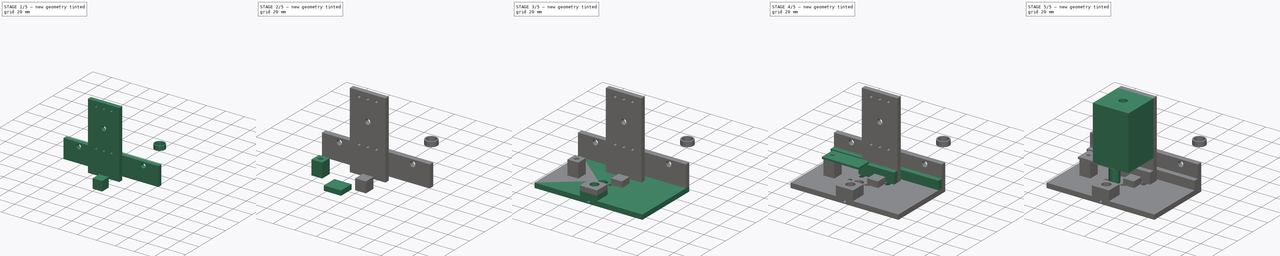
[diagram: build sequence overview — one tinted view per stage of 5, left to right]
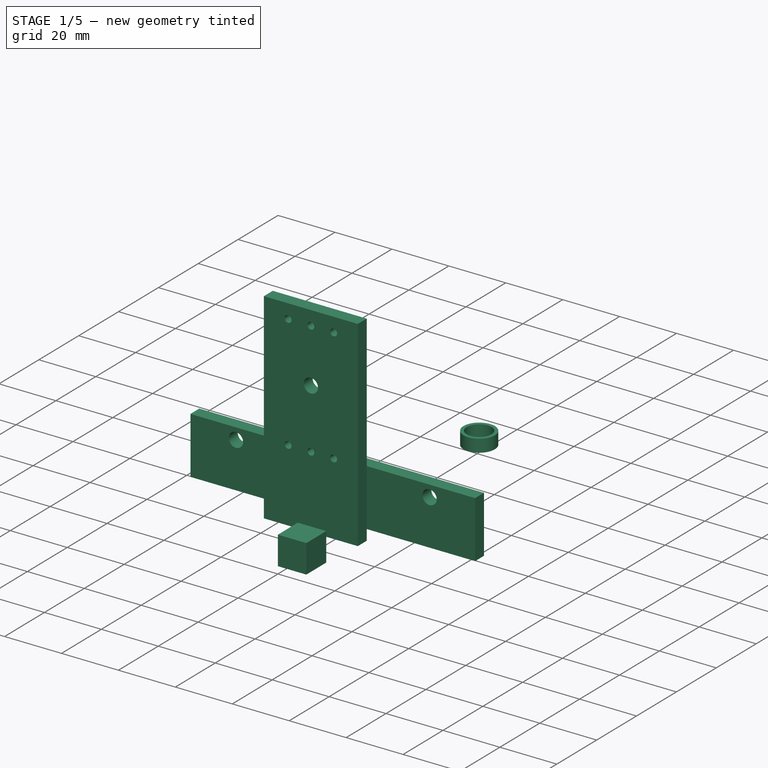
[diagram: stage 1 of 5 — iso view after this stage's code; geometry added in this stage tinted green]
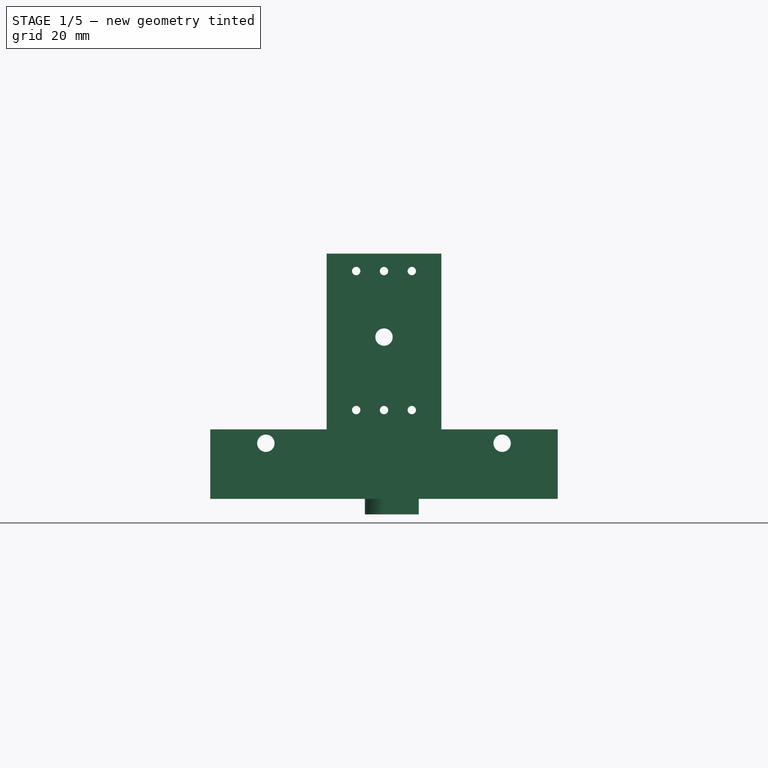
[diagram: stage 1 of 5 — front view after this stage's code; geometry added in this stage tinted green]
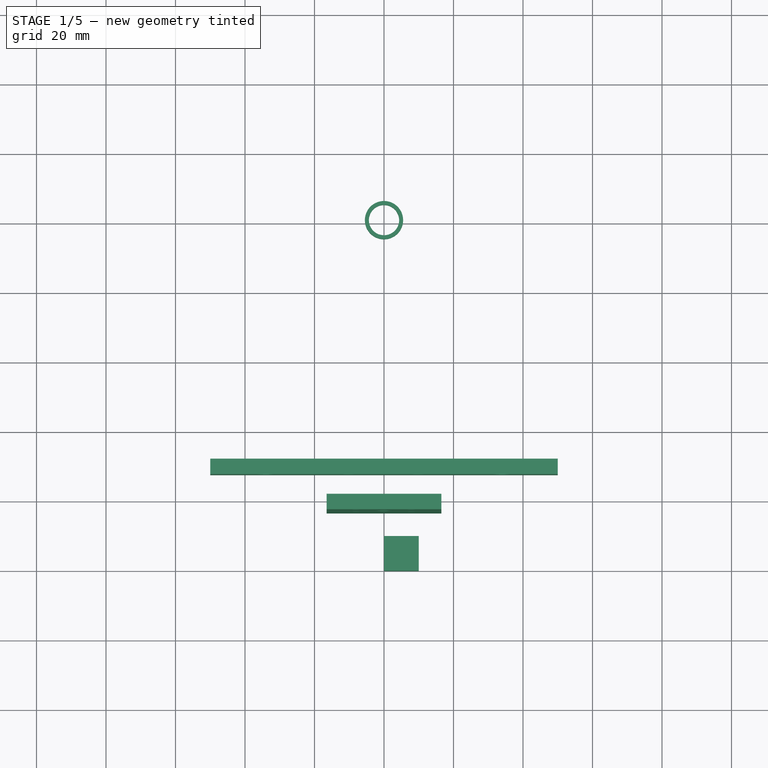
[diagram: stage 1 of 5 — top view after this stage's code; geometry added in this stage tinted green]
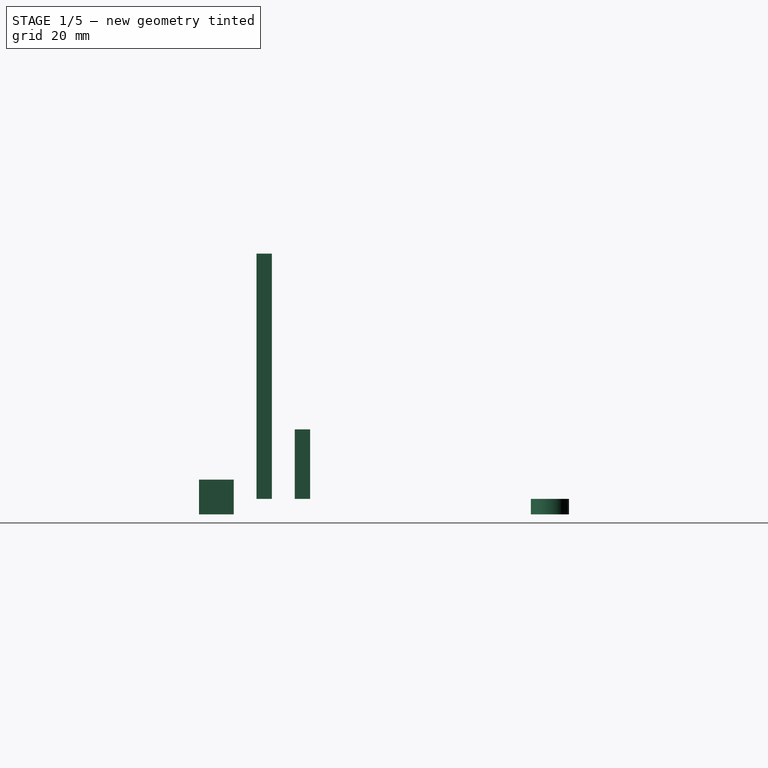
[diagram: stage 1 of 5 — right view after this stage's code; geometry added in this stage tinted green]
FCSTD DOCUMENT  (FreeCAD 0.14R3700 (Git))
Label: laser solderer v9
License: CC-BY 3.0
LicenseURL: http://creativecommons.org/licenses/by/3.0/
objects: Sketcher::SketchObject×23, PartDesign::Pocket×18, Part::Box×12, Part::Feature×9, App::DocumentObjectGroup×5, PartDesign::Pad×4, App::MeasureDistance×4, Part::Cylinder×2
note: 90 computed .brp shape members not serialized (recipe doc carries the construction recipe); baked Part::Feature solids carry a one-line shape summary decoded from their .brp

FEATURE [Part::Box] Box004  label="Laser Support"
  Height = 70.55
  Length = 33
  Placement = pos=(-16.5,16.55,4.45) rot=(0,0,1;0rad)
  Width = 4.45
FEATURE [Part::Box] Box006  label="Back Wall"
  Height = 20
  Length = 100
  Placement = pos=(-50,27.55,4.45) rot=(0,0,1;0rad)
  Width = 4.45
FEATURE [App::DocumentObjectGroup] Group002  label="Melexis"
  Group = -> [Box001,Box002,Cylinder,Pad002,Pad003,Pocket003,Box003,Box005,Pocket004,Pocket013,Pocket014,Pocket015]
FEATURE [Part::Box] Box011  label="LaserSmall"
  Height = 10
  Length = 10
  Width = 10
FEATURE [Sketcher::SketchObject] Sketch021
  Placement = pos=(-16.5,16.55,4.45) rot=(1,0,0;1.5708rad)
  Support = -> Box004 [Face3]
  sketch-geometry (7):
    g0: Circle CenterX=8.5 CenterY=65.55 CenterZ=0 NormalX=0 NormalY=0 NormalZ=1 Radius=1.2
    g1: Circle CenterX=24.5 CenterY=65.55 CenterZ=0 NormalX=0 NormalY=0 NormalZ=1 Radius=1.2
    g2: Circle CenterX=16.5 CenterY=65.55 CenterZ=0 NormalX=0 NormalY=0 NormalZ=1 Radius=1.2
    g3: Circle CenterX=8.5 CenterY=25.55 CenterZ=0 NormalX=0 NormalY=0 NormalZ=1 Radius=1.2
    g4: Circle CenterX=24.5 CenterY=25.55 CenterZ=0 NormalX=0 NormalY=0 NormalZ=1 Radius=1.2
    g5: Circle CenterX=16.5 CenterY=25.55 CenterZ=0 NormalX=0 NormalY=0 NormalZ=1 Radius=1.2
    g6: Circle CenterX=16.5 CenterY=46.55 CenterZ=0 NormalX=0 NormalY=0 NormalZ=1 Radius=2.5
  constraints (21):
    c: Radius(g0) = 1.2
    c: Equal(g1,g0)
    c: DistanceX(g1,g0) = -16
    c: Equal(g2,g0)
    c: DistanceY(g0,g2) = 0
    c: DistanceY(g2,g1) = 0
    c: DistanceX(g2,g1) = 8
    c: DistanceX(g0) = 8.5
    c: DistanceY(g0) = 65.55
    c: Equal(g1,g4)
    c: Equal(g4,g5)
    c: Equal(g5,g3)
    c: DistanceY(g3,g0) = 40
    c: DistanceX(g0,g3) = 0
    c: DistanceY(g5,g3) = 0
    c: DistanceY(g5,g4) = 0
    c: DistanceX(g5,g2) = 0
    c: DistanceX(g4,g1) = 0
    c: Radius(g6) = 2.5
    c: DistanceY(g6,g2) = 19
    c: DistanceX(g2,g6) = 0
FEATURE [PartDesign::Pocket] Pocket016
  Length = 5
  Placement = pos=(-16.5,16.55,4.45) rot=(0,0,1;0rad)
  Sketch = -> Sketch021
  Type = 0
FEATURE [App::DocumentObjectGroup] Group001  label="Laser"
  Group = -> [Box,Pad001,Pocket001,Box004,Box007,Box011,Pocket016]
FEATURE [Sketcher::SketchObject] Sketch022
  Placement = pos=(-50,27.55,4.45) rot=(1,0,0;1.5708rad)
  Support = -> Box006 [Face3]
  sketch-geometry (4):
    g0: Circle CenterX=16 CenterY=16 CenterZ=0 NormalX=0 NormalY=0 NormalZ=1 Radius=2.5
    g1: Circle CenterX=84 CenterY=16 CenterZ=0 NormalX=0 NormalY=0 NormalZ=1 Radius=2.5
    g2: Circle CenterX=40 CenterY=16 CenterZ=0 NormalX=0 NormalY=0 NormalZ=1 Radius=1.75
    g3: Circle CenterX=60 CenterY=16 CenterZ=0 NormalX=0 NormalY=0 NormalZ=1 Radius=1.75
  constraints (12):
    c: Radius(g1) = 2.5
    c: Equal(g0,g1)
    c: DistanceX(g0,g1) = 68
    c: DistanceY(g1,g0) = 0
    c: DistanceX(g0) = 16
    c: DistanceY(g0) = 16
    c: Radius(g3) = 1.75
    c: Equal(g3,g2)
    c: DistanceX(g3,g2) = -20
    c: DistanceY(g3,g2) = 0
    c: DistanceY(g1,g3) = 0
    c: DistanceX(g2) = 40
FEATURE [PartDesign::Pocket] Pocket017  label="BackHolder"
  Length = 5
  Placement = pos=(-50,27.55,4.45) rot=(0,0,1;0rad)
  Sketch = -> Sketch022
  Type = 0
FEATURE [Part::Feature] Pocket018  label="BackHolder001"
  Placement = pos=(-50,43.55,4.45) rot=(-1,0,0;1.5708rad)
  shape: bbox 100 x 20 x 4.45 mm, 10 faces (baked)
FEATURE [Part::Feature] Box012  label="Back Wall002"
  Placement = pos=(-50,34.1,4.45) rot=(-1,0,0;1.5708rad)
  shape: bbox 100 x 8 x 4.45 mm, 6 faces (baked)
FEATURE [Part::Feature] Box013  label="Laser Support002"
  Placement = pos=(-13.5,66.1,4.45) rot=(-1,0,0;1.5708rad)
  shape: bbox 33 x 10 x 4.45 mm, 6 faces (baked)
FEATURE [Part::Feature] Pocket020  label="USBCamShim"
  Placement = pos=(-13,78,0) rot=(0,0,1;0rad)
  shape: bbox 16 x 14 x 4.45 mm, 7 faces (baked)
FEATURE [Part::Feature] Pocket021  label="CircuitBoardShimMiddle001"
  Placement = pos=(23,66,0) rot=(0,0,1;0rad)
  shape: bbox 10 x 10 x 4.45 mm, 7 faces (baked)
FEATURE [Part::Feature] Pocket022  label="USBCamShim001"
  Placement = pos=(6,78,0) rot=(0,0,1;0rad)
  shape: bbox 16 x 14 x 4.45 mm, 7 faces (baked)
FEATURE [Part::Feature] Pocket023  label="CircuitBoardShimMiddle002"
  Placement = pos=(37,66,0) rot=(0,0,1;0rad)
  shape: bbox 10 x 10 x 4.45 mm, 7 faces (baked)
FEATURE [Part::Feature] Pocket024  label="CircuitBoardShimMiddle003"
  Placement = pos=(27,79,0) rot=(0,0,1;0rad)
  shape: bbox 10 x 10 x 4.45 mm, 7 faces (baked)
FEATURE [Part::Feature] Pocket025  label="Pocket017"
  Placement = pos=(-49.5,137.55,0) rot=(1,0,0;1.5708rad)
  shape: bbox 33 x 70.55 x 4.45 mm, 13 faces (baked)
FEATURE [App::DocumentObjectGroup] Group004  label="Milling Copies"
  Group = -> [Pocket018,Box012,Box013,Pocket020,Pocket021,Pocket022,Pocket023,Pocket024,Pocket025]
FEATURE [App::MeasureDistance] Distance  label="Distance: 4.972"
  Distance = 4.97179
  P1 = (-3.9,0,16.8269)
  P2 = (-3,4.38022,19)
FEATURE [App::MeasureDistance] Distance001  label="Distance: 2.925"
  Distance = 2.92479
  P1 = (-3.90413,-0.0841208,16.8999)
  P2 = (-3,-0.209449,19.6786)
FEATURE [App::MeasureDistance] Distance002  label="Distance: 3.538"
  Distance = 3.53772
  P1 = (-3.90057,0.0116237,16.2661)
  P2 = (-3,0.293884,19.6756)
FEATURE [App::MeasureDistance] Distance003  label="Distance: 3.365"
  Distance = 3.36541
  P1 = (-3.90083,-0.0168899,16.4438)
  P2 = (-3,0.216346,19.678)
FEATURE [Part::Cylinder] Cylinder001  label="Ring For Melexis"
  Angle = 360
  Height = 4.45
  Placement = pos=(0,101,0) rot=(0,0,1;0rad)
  Radius = 5.5
FEATURE [Sketcher::SketchObject] Sketch023
  Placement = pos=(0,101,4.45) rot=(0,0,1;0rad)
  Support = -> Cylinder001 [Face2]
  sketch-geometry (1):
    g0: Circle CenterX=0 CenterY=0 CenterZ=0 NormalX=0 NormalY=0 NormalZ=1 Radius=4.35
  constraints (3):
    c: Radius(g0) = 4.35
    c: DistanceX(g0) = 0
    c: DistanceY(g0) = 0
FEATURE [PartDesign::Pocket] Pocket026
  Length = 5
  Placement = pos=(0,101,0) rot=(0,0,1;0rad)
  Sketch = -> Sketch023
  Type = 0
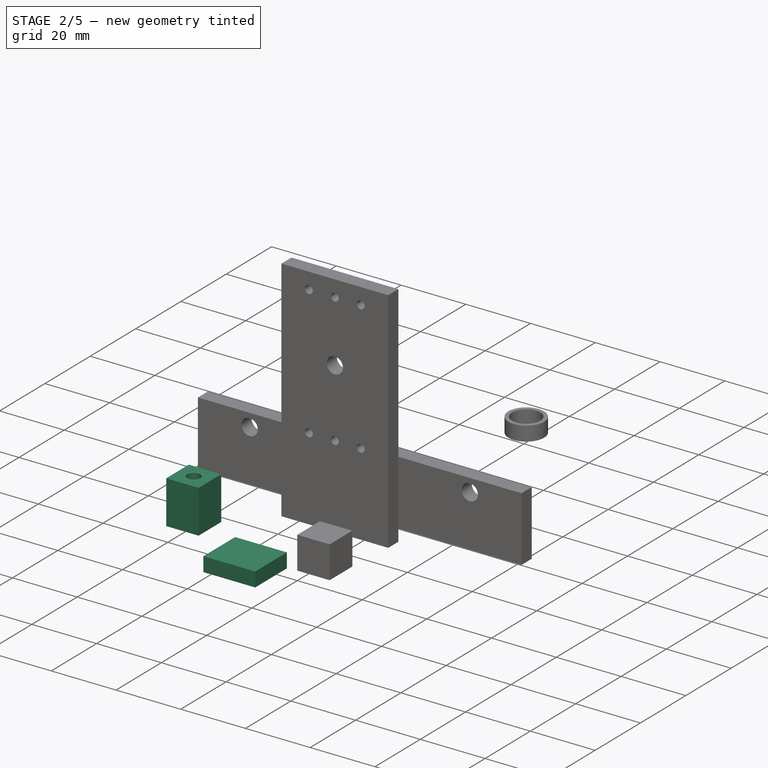
[diagram: stage 2 of 5 — iso view after this stage's code; geometry added in this stage tinted green]
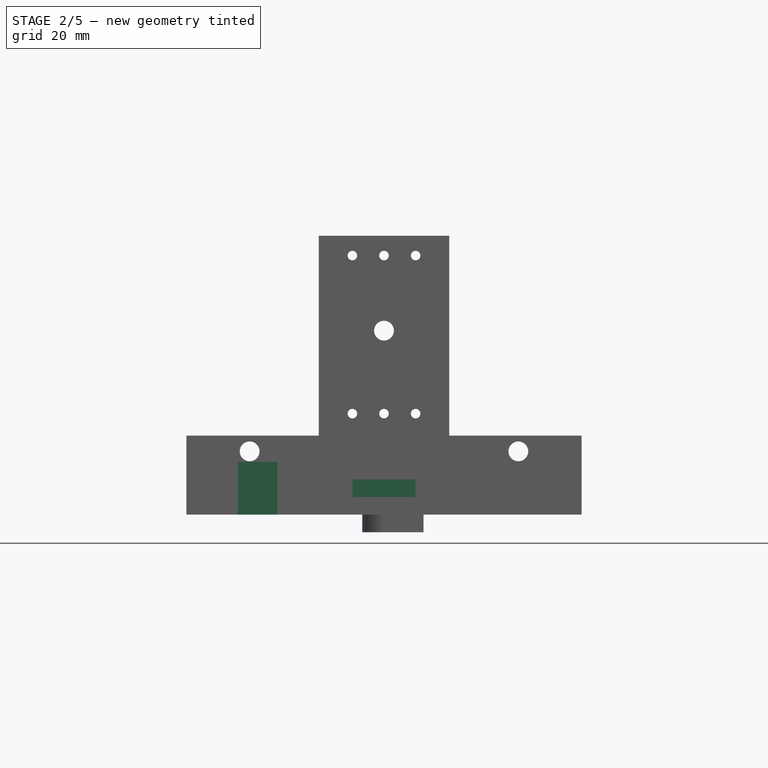
[diagram: stage 2 of 5 — front view after this stage's code; geometry added in this stage tinted green]
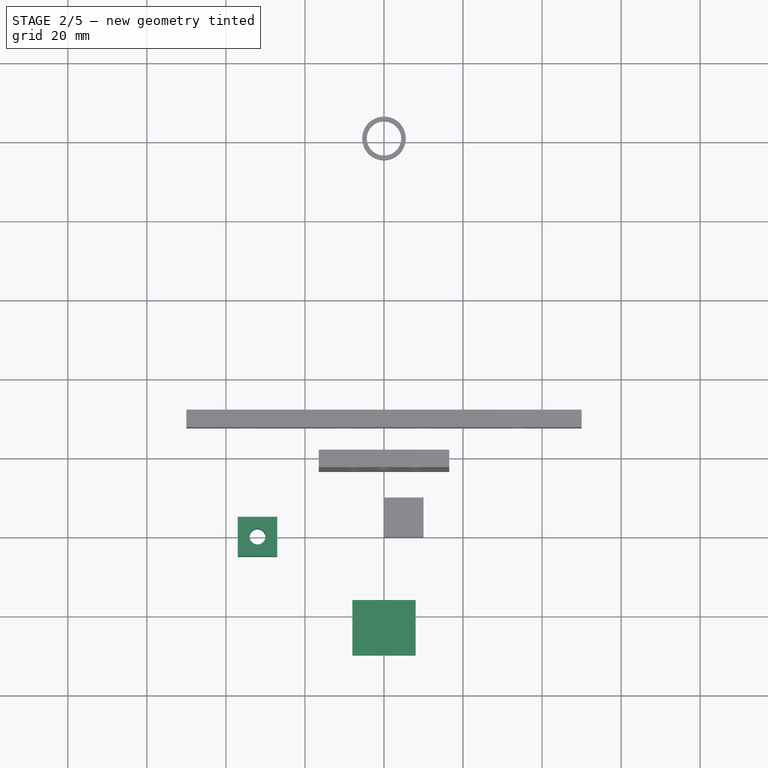
[diagram: stage 2 of 5 — top view after this stage's code; geometry added in this stage tinted green]
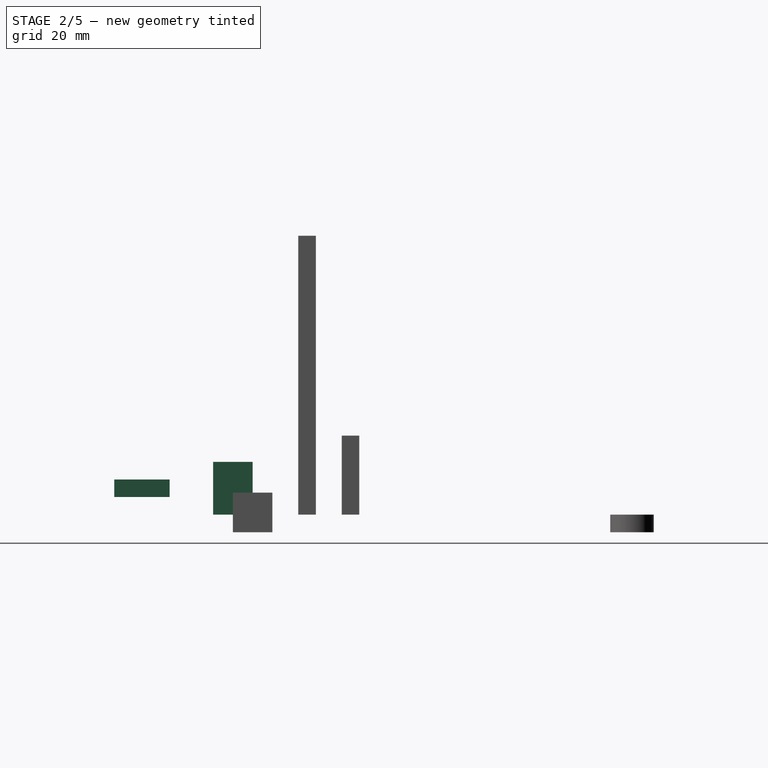
[diagram: stage 2 of 5 — right view after this stage's code; geometry added in this stage tinted green]
FEATURE [Part::Box] Box001  label="Cube001"
  Height = 4.45
  Length = 10
  Placement = pos=(-37,-5,4.45) rot=(0,0,1;0rad)
  Width = 10
FEATURE [Part::Box] Box002  label="Cube002"
  Height = 4.45
  Length = 10
  Placement = pos=(-37,-5,8.9) rot=(0,0,1;0rad)
  Width = 10
FEATURE [Part::Box] Box005  label="Cube004"
  Height = 4.45
  Length = 10
  Placement = pos=(-37,-5,13.35) rot=(0,0,1;0rad)
  Width = 10
FEATURE [Part::Box] Box010  label="Cube006"
  Height = 4.45
  Length = 16
  Placement = pos=(-8,-30,8.9) rot=(0,0,1;0rad)
  Width = 14
FEATURE [App::DocumentObjectGroup] Group003  label="USB Cam"
  Group = -> [Box009,Pocket011,Box010,Pocket012]
FEATURE [Sketcher::SketchObject] Sketch018  label="SketchHoleInShim"
  Placement = pos=(-37,-5,17.8) rot=(0,0,1;0rad)
  Support = -> Box005 [Face6]
  sketch-geometry (1):
    g0: Circle CenterX=5 CenterY=5 CenterZ=0 NormalX=0 NormalY=0 NormalZ=1 Radius=2
  constraints (3):
    c: Radius(g0) = 2
    c: DistanceY(g-1,g0) = 5
    c: DistanceX(g-1,g0) = 5
FEATURE [PartDesign::Pocket] Pocket013  label="CircuitBoardShimTop"
  Length = 5
  Placement = pos=(-37,-5,13.35) rot=(0,0,1;0rad)
  Sketch = -> Sketch018
  Type = 0
FEATURE [Sketcher::SketchObject] Sketch019  label="SketchHoleInShim001"
  Placement = pos=(-37,-5,13.35) rot=(0,0,1;0rad)
  Support = -> Box002 [Face6]
  sketch-geometry (1):
    g0: Circle CenterX=5 CenterY=5 CenterZ=0 NormalX=0 NormalY=0 NormalZ=1 Radius=2
  constraints (3):
    c: Radius(g0) = 2
    c: DistanceY(g-1,g0) = 5
    c: DistanceX(g-1,g0) = 5
FEATURE [PartDesign::Pocket] Pocket014  label="CircuitBoardShimMiddle"
  Length = 5
  Placement = pos=(-37,-5,8.9) rot=(0,0,1;0rad)
  Sketch = -> Sketch019
  Type = 0
FEATURE [Sketcher::SketchObject] Sketch020  label="SketchHoleInShim002"
  Placement = pos=(-37,-5,8.9) rot=(0,0,1;0rad)
  Support = -> Box001 [Face6]
  sketch-geometry (1):
    g0: Circle CenterX=5 CenterY=5 CenterZ=0 NormalX=0 NormalY=0 NormalZ=1 Radius=2
  constraints (3):
    c: Radius(g0) = 2
    c: DistanceY(g-1,g0) = 5
    c: DistanceX(g-1,g0) = 5
FEATURE [PartDesign::Pocket] Pocket015
  Length = 5
  Placement = pos=(-37,-5,4.45) rot=(0,0,1;0rad)
  Sketch = -> Sketch020
  Type = 0
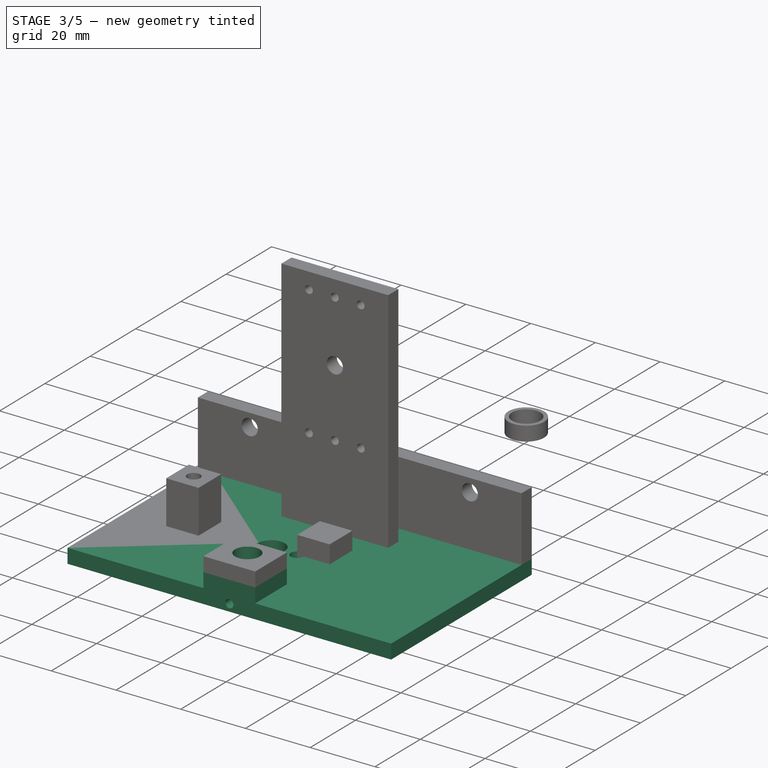
[diagram: stage 3 of 5 — iso view after this stage's code; geometry added in this stage tinted green]
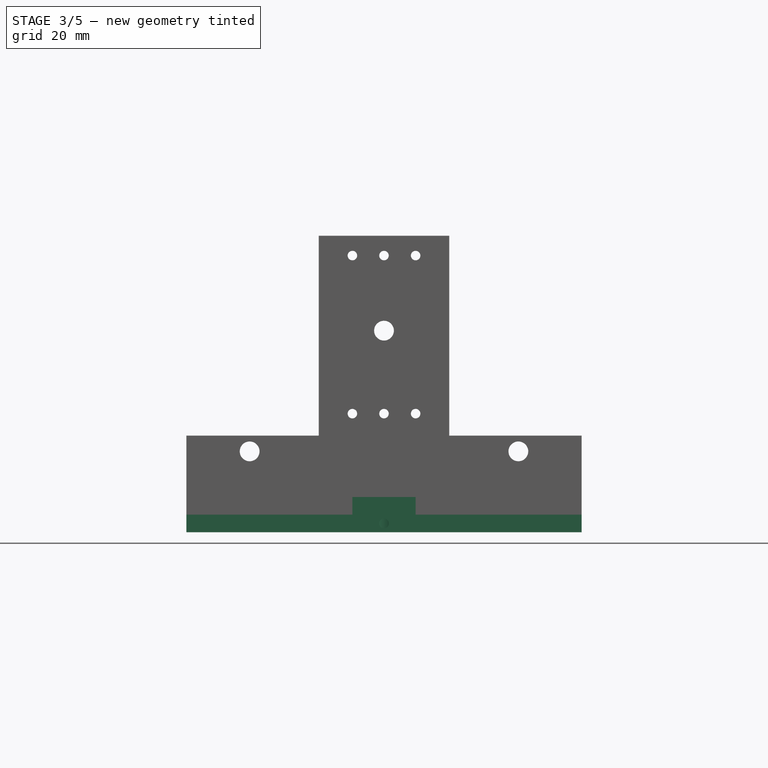
[diagram: stage 3 of 5 — front view after this stage's code; geometry added in this stage tinted green]
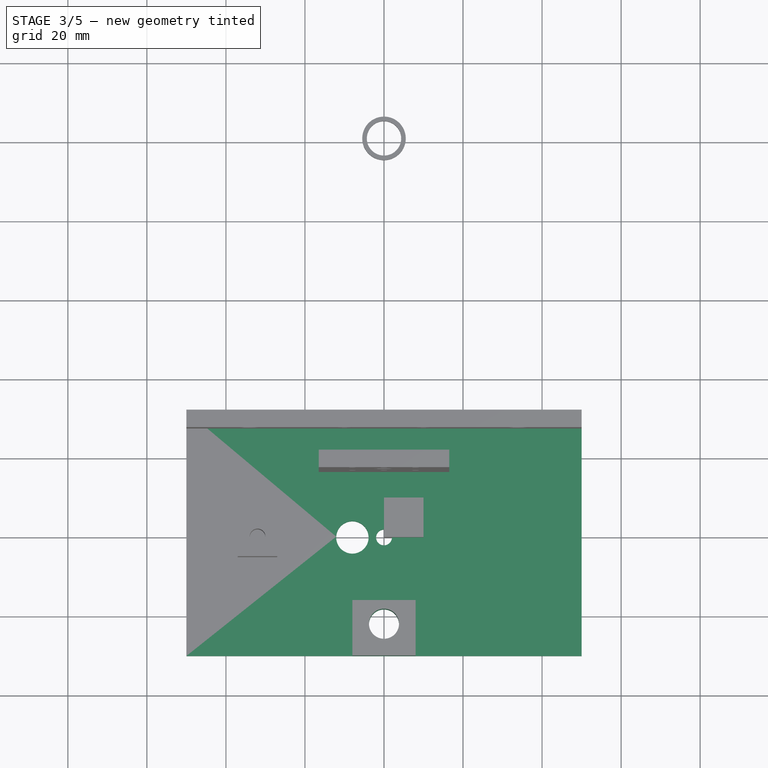
[diagram: stage 3 of 5 — top view after this stage's code; geometry added in this stage tinted green]
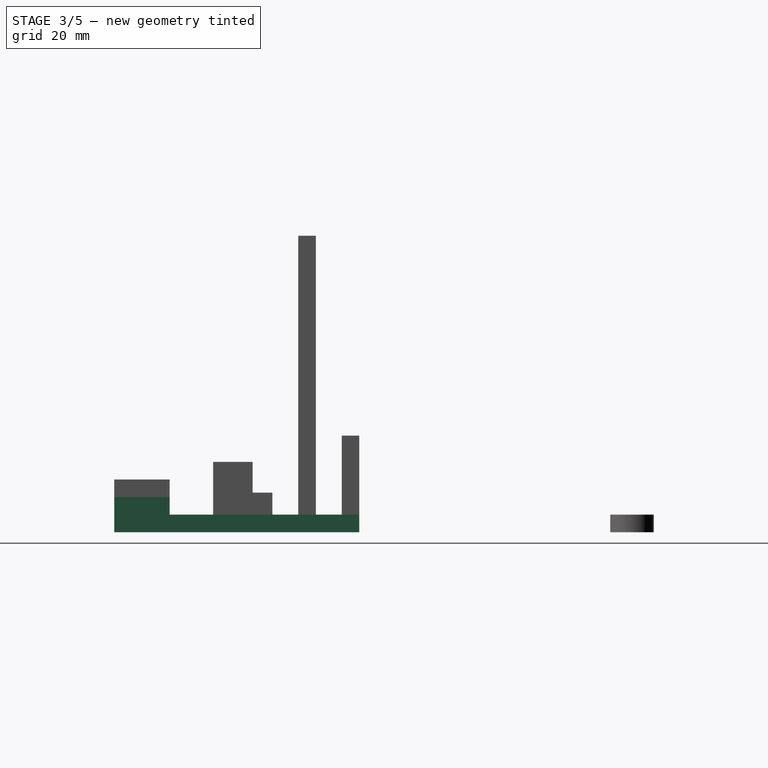
[diagram: stage 3 of 5 — right view after this stage's code; geometry added in this stage tinted green]
FEATURE [Sketcher::SketchObject] Sketch
  sketch-geometry (4):
    g0: LineSegment StartX=-50 StartY=32 StartZ=0 EndX=50 EndY=32 EndZ=0
    g1: LineSegment StartX=50 StartY=32 StartZ=0 EndX=50 EndY=-30 EndZ=0
    g2: LineSegment StartX=50 StartY=-30 StartZ=0 EndX=-50 EndY=-30 EndZ=0
    g3: LineSegment StartX=-50 StartY=-30 StartZ=0 EndX=-50 EndY=32 EndZ=0
  constraints (12):
    c: Coincident(g0,g1)
    c: Coincident(g1,g2)
    c: Coincident(g2,g3)
    c: Coincident(g3,g0)
    c: Horizontal(g0)
    c: Horizontal(g2)
    c: Vertical(g1)
    c: Vertical(g3)
    c: DistanceX(g0) = 50
    c: Symmetric(g0,g0,g-2)
    c: DistanceY(g-1,g0) = 32
    c: DistanceY(g-1,g1) = -30
FEATURE [PartDesign::Pad] Pad
  Length = 4.45
  Length2 = 100
  Sketch = -> Sketch
  Type = 0
FEATURE [Sketcher::SketchObject] Sketch001  label="Laser Hole 2mm rad"
  Placement = pos=(0,0,4.45) rot=(0,0,1;0rad)
  Support = -> Pad [Face6]
  sketch-geometry (1):
    g0: Circle CenterX=0 CenterY=0 CenterZ=0 NormalX=0 NormalY=0 NormalZ=1 Radius=2
  constraints (3):
    c: PointOnObject(g0,g-1)
    c: DistanceX(g-1,g0) = 0
    c: Radius(g0) = 2
FEATURE [PartDesign::Pocket] Pocket
  Length = 4.45
  Sketch = -> Sketch001
  Type = 0
FEATURE [Sketcher::SketchObject] Sketch004  label="M5 hole for 5deg fov"
  Placement = pos=(0,0,4.45) rot=(0,0,1;0rad)
  Support = -> Pocket [Face5]
  sketch-geometry (1):
    g0: Circle CenterX=-8 CenterY=0 CenterZ=0 NormalX=0 NormalY=0 NormalZ=1 Radius=4.1
  constraints (3):
    c: Radius(g0) = 4.1
    c: DistanceY(g-1,g0) = 0
    c: DistanceX(g-1,g0) = -8
FEATURE [PartDesign::Pocket] Pocket002
  Length = 5
  Sketch = -> Sketch004
  Type = 0
FEATURE [Sketcher::SketchObject] Sketch009  label="SketchUSBCamHole"
  Placement = pos=(0,0,4.45) rot=(0,0,1;0rad)
  Support = -> Pocket002 [Face5]
  sketch-geometry (1):
    g0: Circle CenterX=0 CenterY=-22 CenterZ=0 NormalX=0 NormalY=0 NormalZ=1 Radius=3.8
  constraints (3):
    c: Radius(g0) = 3.8
    c: DistanceX(g-1,g0) = 0
    c: DistanceY(g-1,g0) = -22
FEATURE [PartDesign::Pocket] Pocket005
  Length = 5
  Sketch = -> Sketch009
  Type = 0
FEATURE [Sketcher::SketchObject] Sketch010
  Placement = pos=(0,-30,0) rot=(1,0,0;1.5708rad)
  Support = -> Pocket005 [Face6]
  sketch-geometry (1):
    g0: Circle CenterX=0 CenterY=2.225 CenterZ=0 NormalX=0 NormalY=0 NormalZ=1 Radius=1.25
  constraints (3):
    c: Radius(g0) = 1.25
    c: DistanceX(g-1,g0) = 0
    c: DistanceY(g-1,g0) = 2.225
FEATURE [PartDesign::Pocket] Pocket006
  Length = 5
  Sketch = -> Sketch010
  Type = 0
FEATURE [Sketcher::SketchObject] Sketch014
  Placement = pos=(0,0,4.45) rot=(0,0,1;0rad)
  Support = -> Pocket009 [Face5]
FEATURE [App::DocumentObjectGroup] Group  label="Acrylic"
  Group = -> [Pad,Pocket,Pocket002,Pocket005,Pocket006,Pocket007,Pocket008,Pocket009,Sketch014]
FEATURE [Part::Box] Box009  label="Cube005"
  Height = 4.45
  Length = 16
  Placement = pos=(-8,-30,4.45) rot=(0,0,1;0rad)
  Width = 14
FEATURE [Sketcher::SketchObject] Sketch016
  Placement = pos=(-8,-30,8.9) rot=(0,0,1;0rad)
  Support = -> Box009 [Face6]
  sketch-geometry (1):
    g0: Circle CenterX=8 CenterY=8 CenterZ=0 NormalX=0 NormalY=0 NormalZ=1 Radius=3.8
  constraints (3):
    c: Radius(g0) = 3.8
    c: DistanceY(g-1,g0) = 8
    c: DistanceX(g-1,g0) = 8
FEATURE [PartDesign::Pocket] Pocket011
  Length = 5
  Placement = pos=(-8,-30,4.45) rot=(0,0,1;0rad)
  Sketch = -> Sketch016
  Type = 0
FEATURE [Sketcher::SketchObject] Sketch017
  Placement = pos=(-8,-30,13.35) rot=(0,0,1;0rad)
  Support = -> Box010 [Face6]
  sketch-geometry (1):
    g0: Circle CenterX=8 CenterY=8 CenterZ=0 NormalX=0 NormalY=0 NormalZ=1 Radius=3.8
  constraints (3):
    c: Radius(g0) = 3.8
    c: DistanceY(g-1,g0) = 8
    c: DistanceX(g-1,g0) = 8
FEATURE [PartDesign::Pocket] Pocket012
  Length = 5
  Placement = pos=(-8,-30,8.9) rot=(0,0,1;0rad)
  Sketch = -> Sketch017
  Type = 0
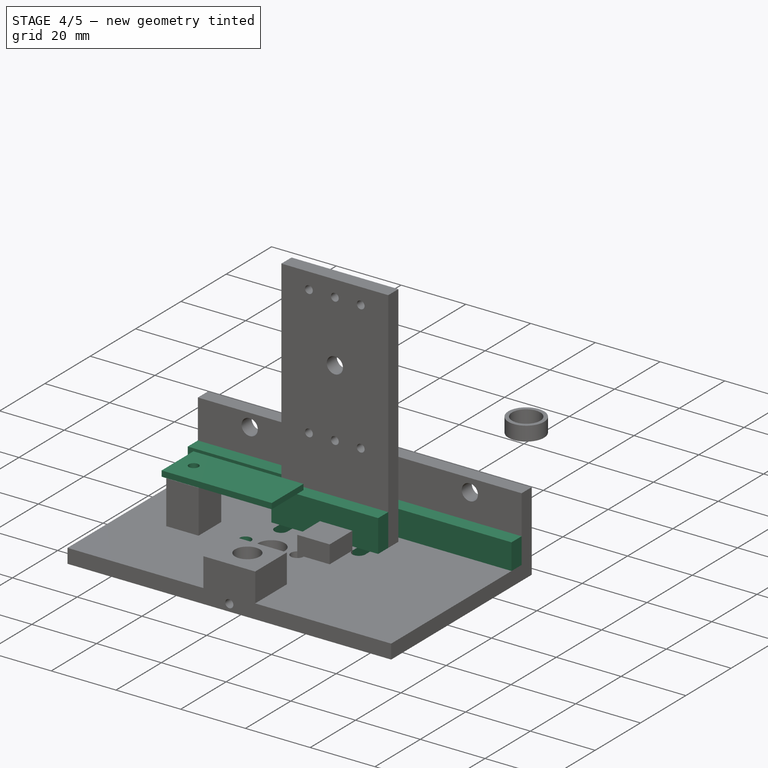
[diagram: stage 4 of 5 — iso view after this stage's code; geometry added in this stage tinted green]
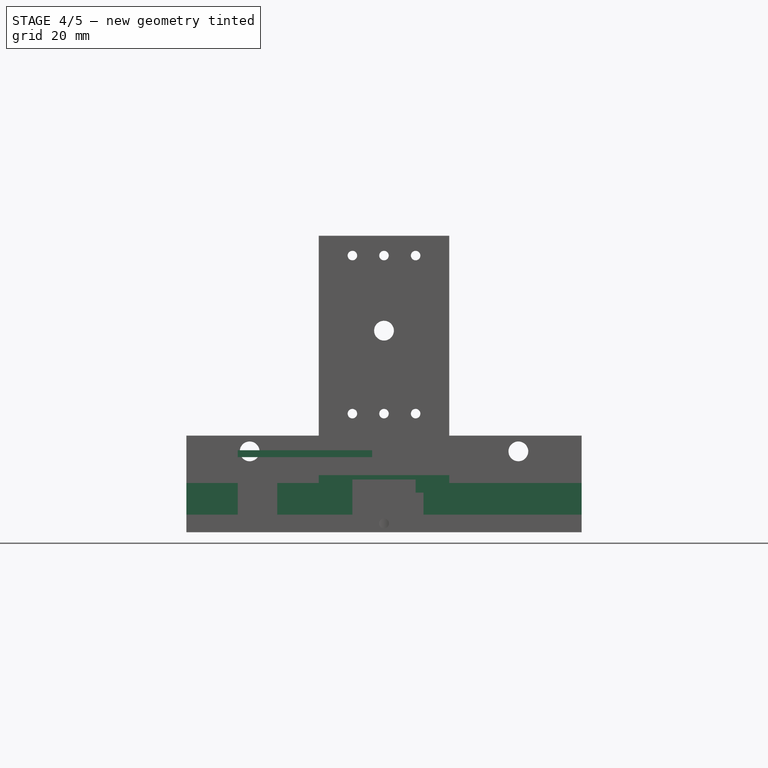
[diagram: stage 4 of 5 — front view after this stage's code; geometry added in this stage tinted green]
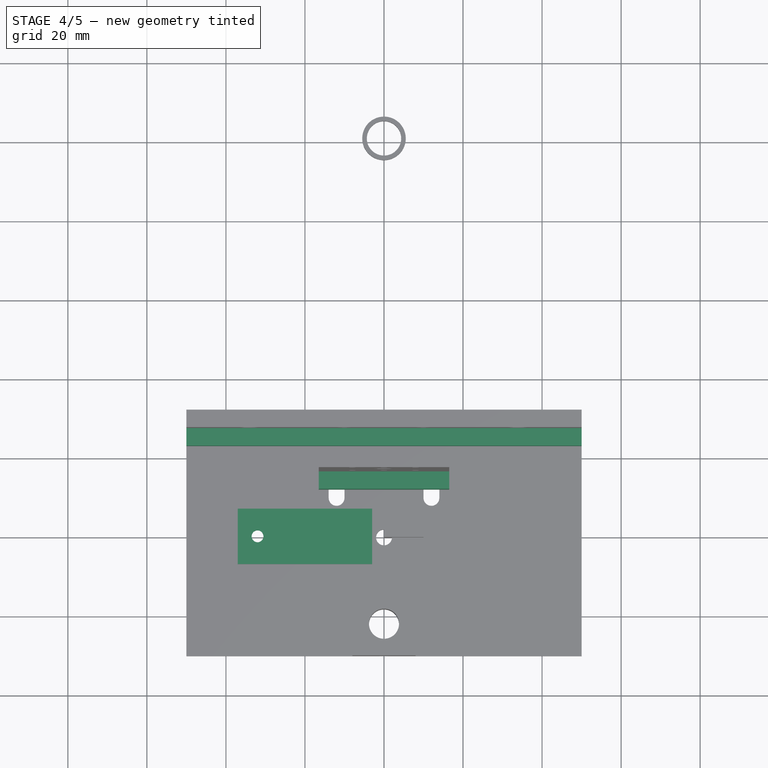
[diagram: stage 4 of 5 — top view after this stage's code; geometry added in this stage tinted green]
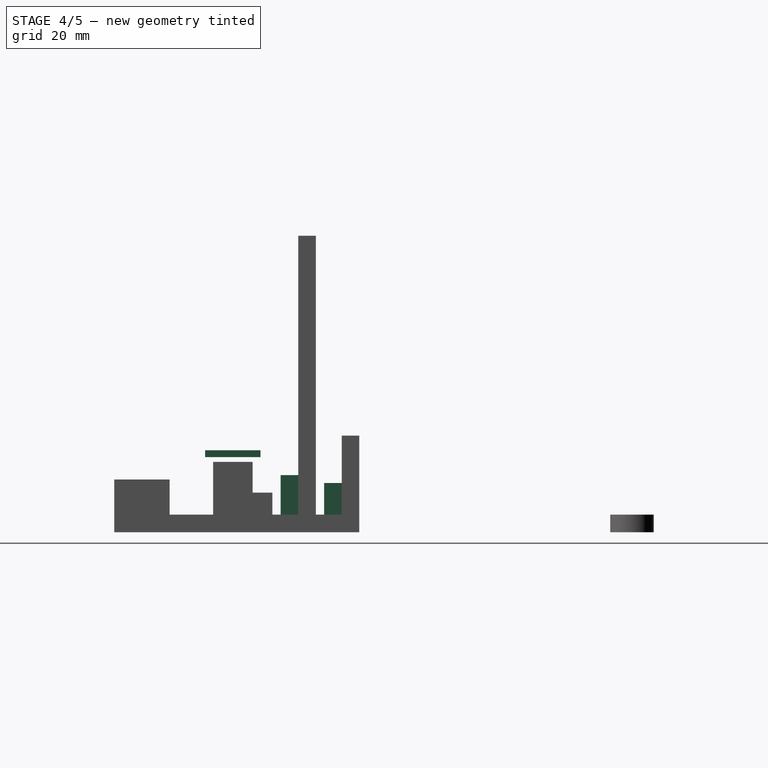
[diagram: stage 4 of 5 — right view after this stage's code; geometry added in this stage tinted green]
FEATURE [Part::Box] Box003  label="FR4"
  Height = 1.75
  Length = 34
  Placement = pos=(-37,-7,19) rot=(0,0,1;0rad)
  Width = 14
FEATURE [Sketcher::SketchObject] Sketch008
  Placement = pos=(-37,-7,20.75) rot=(0,0,1;0rad)
  Support = -> Box003 [Face6]
  sketch-geometry (1):
    g0: Circle CenterX=5 CenterY=7 CenterZ=0 NormalX=0 NormalY=0 NormalZ=1 Radius=1.5
  constraints (3):
    c: Radius(g0) = 1.5
    c: DistanceX(g-1,g0) = 5
    c: DistanceY(g-1,g0) = 7
FEATURE [PartDesign::Pocket] Pocket004
  Length = 5
  Placement = pos=(-37,-7,19) rot=(0,0,1;0rad)
  Sketch = -> Sketch008
  Type = 0
FEATURE [Sketcher::SketchObject] Sketch011
  Placement = pos=(0,0,4.45) rot=(0,0,1;0rad)
  Support = -> Pocket006 [Face5]
  sketch-geometry (2):
    g0: Circle CenterX=-16 CenterY=0 CenterZ=0 NormalX=0 NormalY=0 NormalZ=1 Radius=1.75
    g1: Circle CenterX=-32 CenterY=0 CenterZ=0 NormalX=0 NormalY=0 NormalZ=1 Radius=2
  constraints (6):
    c: Radius(g0) = 1.75
    c: DistanceX(g-1,g0) = -16
    c: DistanceY(g-1,g0) = 0
    c: Radius(g1) = 2
    c: DistanceY(g-1,g1) = 0
    c: DistanceX(g-1,g1) = -32
FEATURE [PartDesign::Pocket] Pocket007
  Length = 5
  Sketch = -> Sketch011
  Type = 0
FEATURE [Part::Box] Box007  label="Laser Support001"
  Height = 10
  Length = 33
  Placement = pos=(-16.5,12.1,4.45) rot=(0,0,1;0rad)
  Width = 4.45
FEATURE [Part::Box] Box008  label="Back Wall001"
  Height = 8
  Length = 100
  Placement = pos=(-50,23.1,4.45) rot=(0,0,1;0rad)
  Width = 4.45
FEATURE [Sketcher::SketchObject] Sketch012
  Placement = pos=(0,0,4.45) rot=(0,0,1;0rad)
  Support = -> Pocket007 [Face5]
  sketch-geometry (8):
    g0: ArcOfCircle CenterX=12 CenterY=20 CenterZ=0 NormalX=0 NormalY=0 NormalZ=1 Radius=2 StartAngle=5.2119e-08 EndAngle=3.14159
    g1: ArcOfCircle CenterX=12 CenterY=10 CenterZ=0 NormalX=0 NormalY=0 NormalZ=1 Radius=2 StartAngle=3.14159 EndAngle=6.28319
    g2: LineSegment StartX=10 StartY=20 StartZ=0 EndX=10 EndY=10 EndZ=0
    g3: LineSegment StartX=14 StartY=20 StartZ=0 EndX=14 EndY=10 EndZ=0
    g4: ArcOfCircle CenterX=-12 CenterY=20 CenterZ=0 NormalX=0 NormalY=0 NormalZ=1 Radius=2 StartAngle=6.28318 EndAngle=9.42478
    g5: ArcOfCircle CenterX=-12 CenterY=10 CenterZ=0 NormalX=0 NormalY=0 NormalZ=1 Radius=2 StartAngle=3.14159 EndAngle=6.28318
    g6: LineSegment StartX=-14 StartY=20 StartZ=0 EndX=-14 EndY=10 EndZ=0
    g7: LineSegment StartX=-10 StartY=20 StartZ=0 EndX=-10 EndY=10 EndZ=0
  constraints (28):
    c: Tangent(g0,g2)
    c: Tangent(g0,g3)
    c: Tangent(g1,g2)
    c: Tangent(g1,g3)
    c: Coincident(g0,g3)
    c: Coincident(g0,g2)
    c: Coincident(g2,g1)
    c: Coincident(g3,g1)
    c: Vertical(g2)
    c: Equal(g0,g1)
    c: DistanceY(g3) = -10
    c: DistanceX(g0,g0) = 4
    c: Tangent(g4,g6)
    c: Tangent(g4,g7)
    c: Tangent(g5,g6)
    c: Tangent(g5,g7)
    c: Coincident(g4,g7)
    c: Coincident(g4,g6)
    c: Coincident(g6,g5)
    c: Coincident(g7,g5)
    c: Vertical(g6)
    c: Equal(g4,g5)
    c: Equal(g7,g3)
    c: DistanceX(g4,g4) = 4
    c: DistanceX(g-1,g5) = -10
    c: DistanceY(g-1,g5) = 10
    c: DistanceY(g-1,g1) = 10
    c: DistanceX(g-1,g1) = 10
FEATURE [PartDesign::Pocket] Pocket008
  Length = 5
  Sketch = -> Sketch012
  Type = 0
FEATURE [Sketcher::SketchObject] Sketch013
  Placement = pos=(0,0,4.45) rot=(0,0,1;0rad)
  Support = -> Pocket008 [Face5]
  sketch-geometry (3):
    g0: Circle CenterX=44 CenterY=27.45 CenterZ=0 NormalX=0 NormalY=0 NormalZ=1 Radius=2
    g1: Circle CenterX=-44 CenterY=27.45 CenterZ=0 NormalX=0 NormalY=0 NormalZ=1 Radius=2
    g2: Circle CenterX=0 CenterY=27.45 CenterZ=0 NormalX=0 NormalY=0 NormalZ=1 Radius=2
  constraints (9):
    c: Radius(g0) = 2
    c: DistanceX(g-1,g0) = 44
    c: Radius(g1) = 2
    c: DistanceX(g-1,g1) = -44
    c: DistanceY(g-1,g1) = 27.45
    c: DistanceY(g1,g0) = 0
    c: Radius(g2) = 2
    c: DistanceX(g-1,g2) = 0
    c: DistanceY(g0,g2) = 0
FEATURE [PartDesign::Pocket] Pocket009
  Length = 5
  Sketch = -> Sketch013
  Type = 0
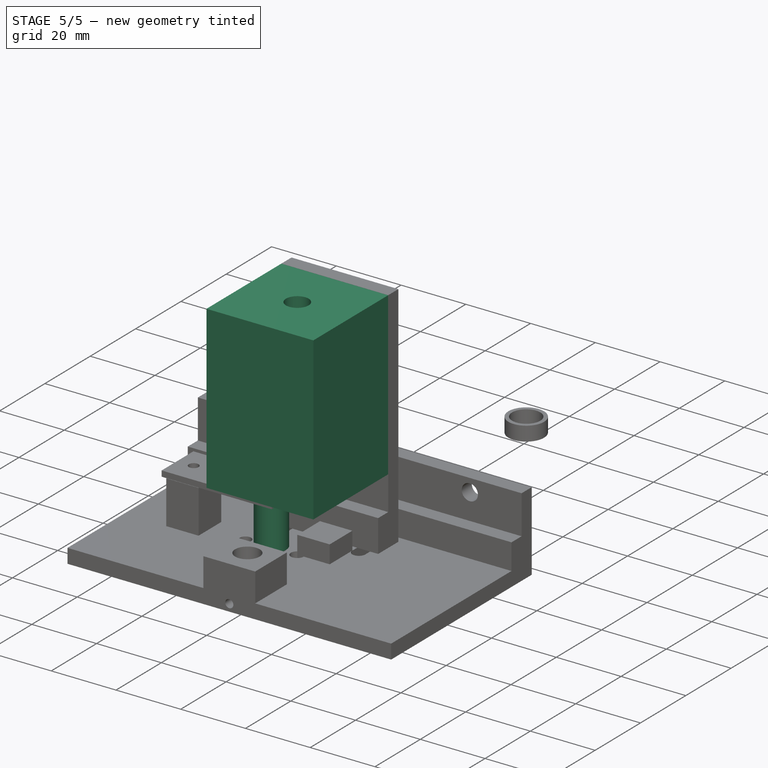
[diagram: stage 5 of 5 — iso view after this stage's code; geometry added in this stage tinted green]
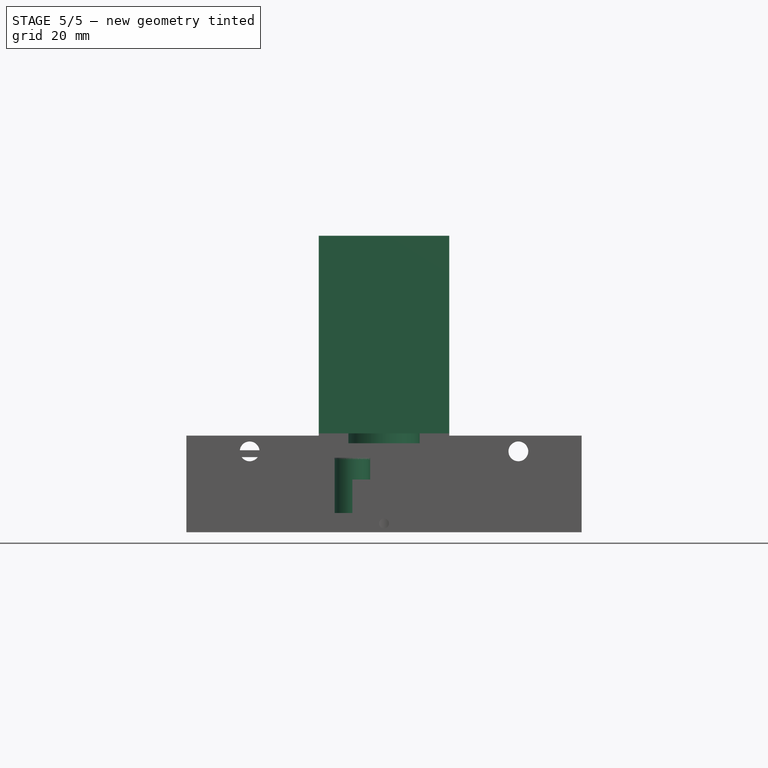
[diagram: stage 5 of 5 — front view after this stage's code; geometry added in this stage tinted green]
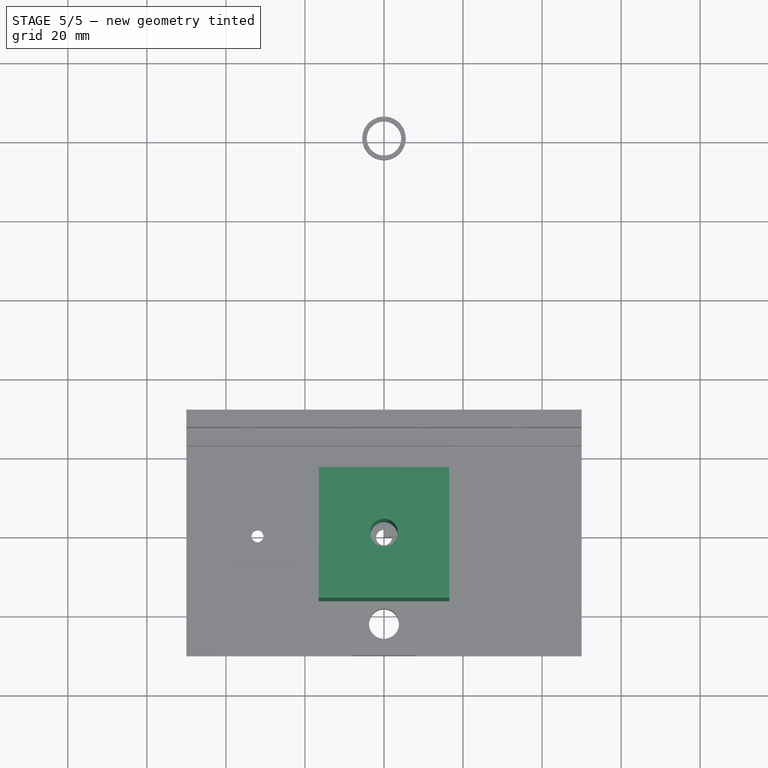
[diagram: stage 5 of 5 — top view after this stage's code; geometry added in this stage tinted green]
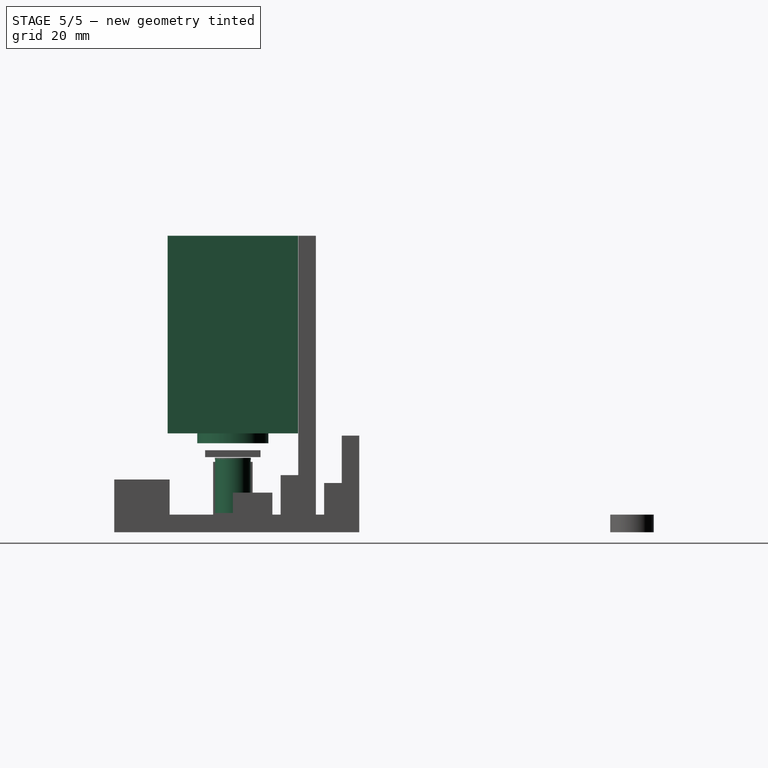
[diagram: stage 5 of 5 — right view after this stage's code; geometry added in this stage tinted green]
FEATURE [Part::Box] Box  label="Cube"
  Height = 50
  Length = 33
  Placement = pos=(-16.5,-16.5,25) rot=(0,0,1;0rad)
  Width = 33
FEATURE [Sketcher::SketchObject] Sketch002
  Placement = pos=(-16.5,-16.5,25) rot=(1,0,0;3.14159rad)
  Support = -> Box [Face5]
  sketch-geometry (1):
    g0: Circle CenterX=16.5 CenterY=-16.5 CenterZ=0 NormalX=0 NormalY=0 NormalZ=1 Radius=9
  constraints (3):
    c: DistanceX(g-1,g0) = 16.5
    c: DistanceY(g-1,g0) = -16.5
    c: Radius(g0) = 9
FEATURE [PartDesign::Pad] Pad001
  Length = 2.5
  Length2 = 100
  Placement = pos=(-16.5,-16.5,25) rot=(0,0,1;0rad)
  Sketch = -> Sketch002
  Type = 0
FEATURE [Sketcher::SketchObject] Sketch003
  Placement = pos=(-16.5,-16.5,22.5) rot=(1,0,0;3.14159rad)
  Support = -> Pad001 [Face8]
  sketch-geometry (1):
    g0: Circle CenterX=16.5 CenterY=-16.5 CenterZ=0 NormalX=0 NormalY=0 NormalZ=1 Radius=3.5
  constraints (3):
    c: DistanceX(g-1,g0) = 16.5
    c: DistanceY(g-1,g0) = -16.5
    c: Radius(g0) = 3.5
FEATURE [PartDesign::Pocket] Pocket001  label="LaserBig"
  Length = 53
  Placement = pos=(-16.5,-16.5,25) rot=(0,0,1;0rad)
  Sketch = -> Sketch003
  Type = 0
FEATURE [Part::Cylinder] Cylinder
  Angle = 360
  Height = 3.1
  Placement = pos=(-8,0,15.25) rot=(0,0,1;0rad)
  Radius = 4.1
FEATURE [Sketcher::SketchObject] Sketch005
  Placement = pos=(-8,0,18.35) rot=(0,0,1;0rad)
  Support = -> Cylinder [Face2]
  sketch-geometry (1):
    g0: Circle CenterX=0 CenterY=0 CenterZ=0 NormalX=0 NormalY=0 NormalZ=1 Radius=4.56
  constraints (3):
    c: Radius(g0) = 4.56
    c: DistanceX(g0) = 0
    c: DistanceY(g-1,g0) = 0
FEATURE [PartDesign::Pad] Pad002
  Length = 0.5
  Length2 = 100
  Placement = pos=(-8,0,15.25) rot=(0,0,1;0rad)
  Sketch = -> Sketch005
  Type = 0
FEATURE [Sketcher::SketchObject] Sketch006
  Placement = pos=(-8,0,18.35) rot=(1,0,0;3.14159rad)
  Support = -> Pad002 [Face3]
  sketch-geometry (1):
    g0: Circle CenterX=0 CenterY=0 CenterZ=0 NormalX=0 NormalY=0 NormalZ=1 Radius=4.5
  constraints (3):
    c: Radius(g0) = 4.5
    c: DistanceX(g-1,g0) = 0
    c: DistanceY(g-1,g0) = 0
FEATURE [PartDesign::Pad] Pad003
  Length = 13.5
  Length2 = 100
  Placement = pos=(-8,0,15.25) rot=(0,0,1;0rad)
  Sketch = -> Sketch006
  Type = 0
FEATURE [Sketcher::SketchObject] Sketch007
  Placement = pos=(-8,0,4.85) rot=(1,0,0;3.14159rad)
  Support = -> Pad003 [Face5]
  sketch-geometry (1):
    g0: Circle CenterX=0 CenterY=0 CenterZ=0 NormalX=0 NormalY=0 NormalZ=1 Radius=4.4
  constraints (3):
    c: Radius(g0) = 4.4
    c: DistanceX(g-1,g0) = 0
    c: DistanceY(g-1,g0) = 0
FEATURE [PartDesign::Pocket] Pocket003
  Length = 13.5
  Placement = pos=(-8,0,15.25) rot=(0,0,1;0rad)
  Sketch = -> Sketch007
  Type = 0
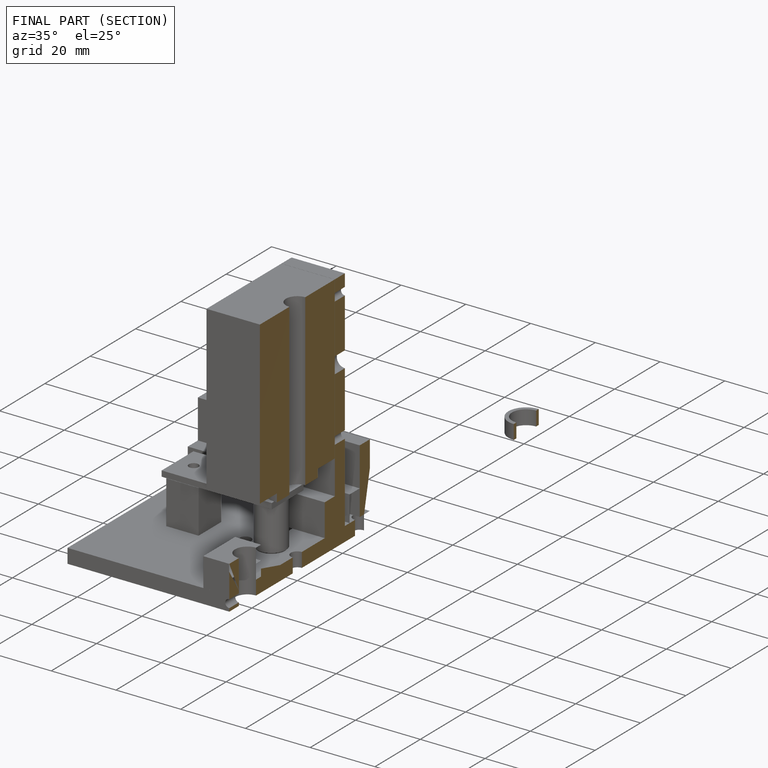
[diagram: finished part — half-section view (interior)]
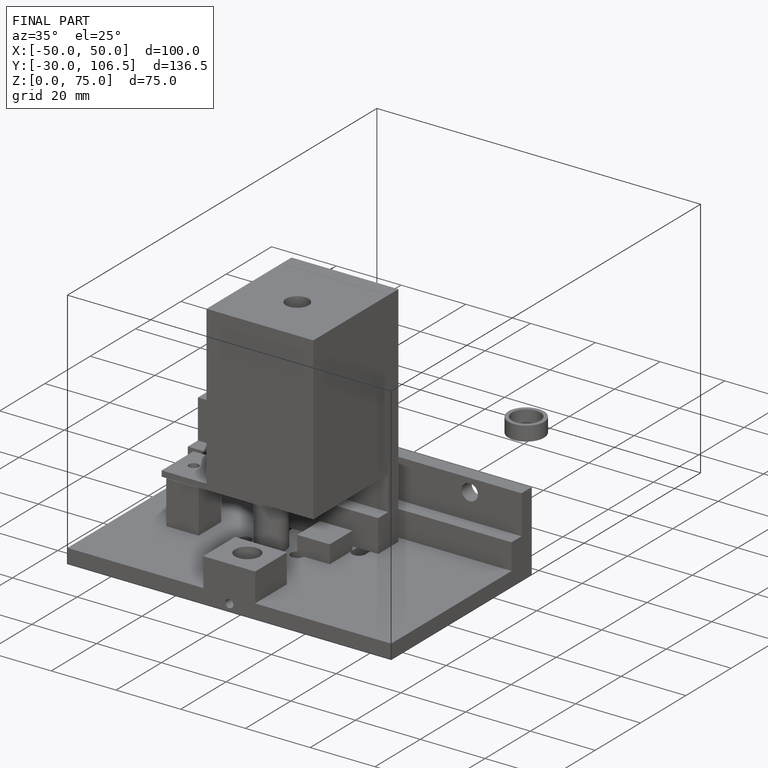
[diagram: finished part — iso view with bounding-box wireframe]
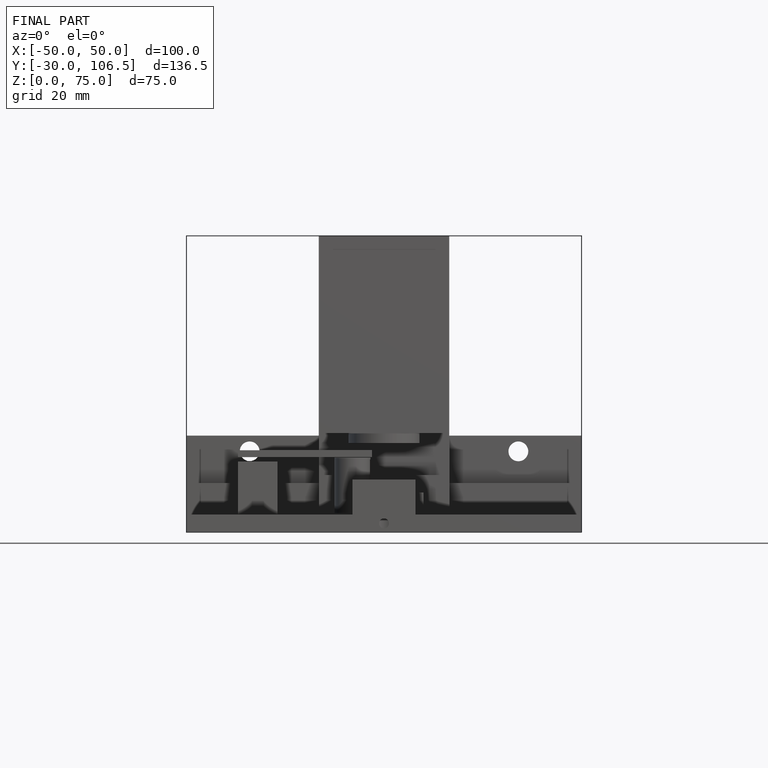
[diagram: finished part — front view with bounding-box wireframe]
